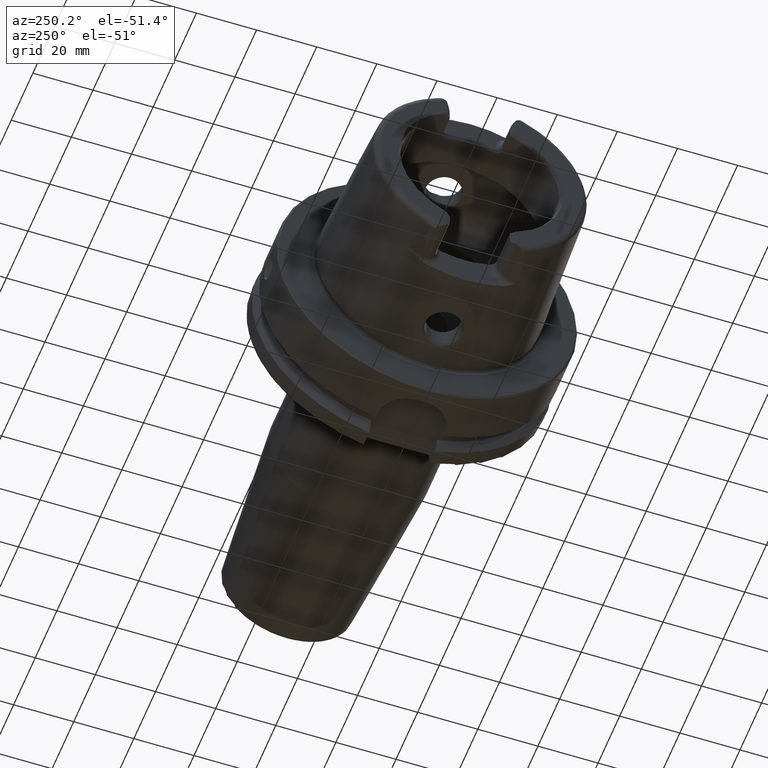
[diagram: clean part render]
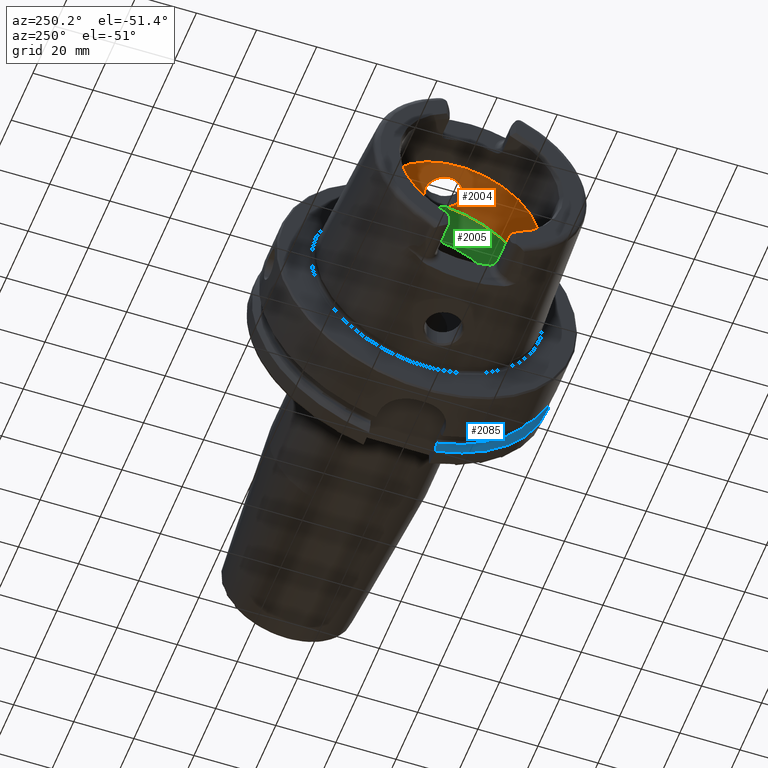
[diagram: same view with three faces highlighted in distinct colors, each labeled with its STEP entity id]
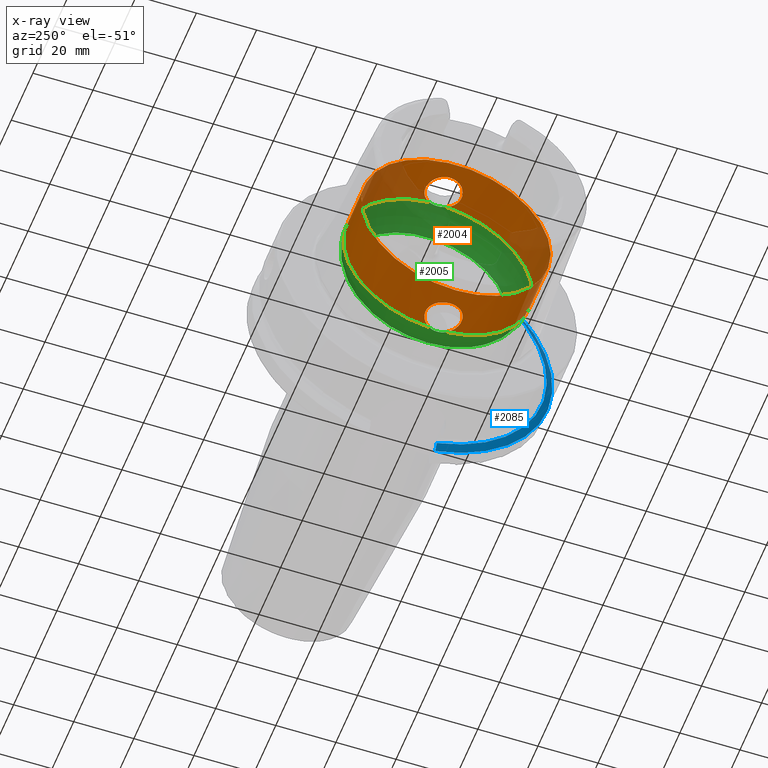
[diagram: x-ray of the same camera — body ghosted, the three highlighted faces saturated]
A machine part, auxiliary view with three faces highlighted in distinct colors.
The next image is the same camera in x-ray (body ghosted, the three faces saturated) — at least one of them is partly hidden behind the body in this view.
Their STEP definitions:

[orange] entity #2004 — the highlighted cylindrical surface (bore or boss wall) has radius 31.5 mm, axis along (-1, 0, 0).
#49=B_SPLINE_CURVE_WITH_KNOTS('',3,(#3570,#3571,#3572,#3573,#3574,#3575,
#3576,#3577,#3578,#3579,#3580,#3581,#3582,#3583,#3584,#3585,#3586,#3587,
#3588,#3589,#3590,#3591,#3592,#3593,#3594,#3595,#3596,#3597,#3598,#3599,
#3600),.UNSPECIFIED.,.F.,.F.,(4,2,2,2,2,2,2,2,2,2,2,3,2,2,4),(-2.42966289251045,
-2.26609494287567,-2.03948128472637,-1.81286762657707,-1.58625396842777,
-1.35964031027847,-1.1330370617835,-0.906433813288535,-0.679830564793567,
-0.453227316298599,-0.226613658149299,0.,0.2266136581493,0.453227316298599,
0.616795265988555),.UNSPECIFIED.);
#54=B_SPLINE_CURVE_WITH_KNOTS('',3,(#3762,#3763,#3764,#3765,#3766,#3767,
#3768,#3769,#3770,#3771,#3772,#3773,#3774,#3775,#3776,#3777,#3778,#3779,
#3780,#3781,#3782,#3783,#3784,#3785,#3786,#3787,#3788,#3789,#3790,#3791,
#3792),.UNSPECIFIED.,.F.,.F.,(4,2,2,3,2,2,2,2,2,2,2,2,2,2,4),(-0.616795265933374,
-0.453227316298598,-0.226613658149299,0.,0.2266136581493,0.453227316298599,
0.679830564793567,0.906433813288535,1.1330370617835,1.35964031027847,1.58625396842777,
1.81286762657707,2.03948128472637,2.26609494287567,2.42966289256562),
 .UNSPECIFIED.);
#183=CYLINDRICAL_SURFACE('',#2195,31.5);
#242=FACE_OUTER_BOUND('',#369,.T.);
#369=EDGE_LOOP('',(#1504,#1505,#1506,#1507,#1508,#1509,#1510,#1511,#1512));
#501=LINE('',#3808,#608);
#608=VECTOR('',#2583,31.5);
#714=CIRCLE('',#2196,31.5);
#715=CIRCLE('',#2197,31.5);
#716=CIRCLE('',#2198,31.5);
#717=CIRCLE('',#2199,31.5);
#718=CIRCLE('',#2200,31.5);
#888=VERTEX_POINT('',#3558);
#889=VERTEX_POINT('',#3569);
#892=VERTEX_POINT('',#3749);
#894=VERTEX_POINT('',#3761);
#895=VERTEX_POINT('',#3805);
#896=VERTEX_POINT('',#3807);
#897=VERTEX_POINT('',#3809);
#1119=EDGE_CURVE('',#889,#888,#49,.T.);
#1125=EDGE_CURVE('',#894,#892,#54,.T.);
#1128=EDGE_CURVE('',#895,#892,#714,.T.);
#1129=EDGE_CURVE('',#895,#896,#501,.T.);
#1130=EDGE_CURVE('',#896,#897,#715,.T.);
#1131=EDGE_CURVE('',#897,#896,#716,.T.);
#1132=EDGE_CURVE('',#889,#895,#717,.T.);
#1133=EDGE_CURVE('',#894,#888,#718,.T.);
#1504=ORIENTED_EDGE('',*,*,#1125,.T.);
#1505=ORIENTED_EDGE('',*,*,#1128,.F.);
#1506=ORIENTED_EDGE('',*,*,#1129,.T.);
#1507=ORIENTED_EDGE('',*,*,#1130,.T.);
#1508=ORIENTED_EDGE('',*,*,#1131,.T.);
#1509=ORIENTED_EDGE('',*,*,#1129,.F.);
#1510=ORIENTED_EDGE('',*,*,#1132,.F.);
#1511=ORIENTED_EDGE('',*,*,#1119,.T.);
#1512=ORIENTED_EDGE('',*,*,#1133,.F.);
#2004=ADVANCED_FACE('',(#242),#183,.F.);
#2195=AXIS2_PLACEMENT_3D('',#3804,#2579,#2580);
#2196=AXIS2_PLACEMENT_3D('',#3806,#2581,#2582);
#2197=AXIS2_PLACEMENT_3D('',#3810,#2584,#2585);
#2198=AXIS2_PLACEMENT_3D('',#3811,#2586,#2587);
#2199=AXIS2_PLACEMENT_3D('',#3812,#2588,#2589);
#2200=AXIS2_PLACEMENT_3D('',#3813,#2590,#2591);
#2579=DIRECTION('center_axis',(-1.,0.,0.));
#2580=DIRECTION('ref_axis',(0.,1.,0.));
#2581=DIRECTION('center_axis',(-1.,0.,0.));
#2582=DIRECTION('ref_axis',(0.,0.,1.));
#2583=DIRECTION('',(-1.,0.,0.));
#2584=DIRECTION('center_axis',(-1.,0.,0.));
#2585=DIRECTION('ref_axis',(0.,0.,1.));
#2586=DIRECTION('center_axis',(-1.,0.,0.));
#2587=DIRECTION('ref_axis',(0.,0.,1.));
#2588=DIRECTION('center_axis',(-1.,0.,0.));
#2589=DIRECTION('ref_axis',(0.,0.,1.));
#2590=DIRECTION('center_axis',(-1.,0.,0.));
#2591=DIRECTION('ref_axis',(0.,0.,1.));
#3558=CARTESIAN_POINT('',(-9.74679434480896,2.89893607109041,-31.3663222207471));
#3569=CARTESIAN_POINT('',(-9.74679434480896,-2.89893607109041,-31.3663222207471));
#3570=CARTESIAN_POINT('Ctrl Pts',(-9.74679434480898,-2.8989360710904,-31.3663222207471));
#3571=CARTESIAN_POINT('Ctrl Pts',(-10.0245557799842,-3.40227174537722,-31.3198029657389));
#3572=CARTESIAN_POINT('Ctrl Pts',(-10.3735944692601,-3.85887584349869,-31.2651415110221));
#3573=CARTESIAN_POINT('Ctrl Pts',(-11.289042660848,-4.77432403508655,-31.140708727458));
#3574=CARTESIAN_POINT('Ctrl Pts',(-11.9624834305428,-5.23577180141274,-31.0633803744766));
#3575=CARTESIAN_POINT('Ctrl Pts',(-13.4401908644727,-5.84865855662958,-30.9538382316308));
#3576=CARTESIAN_POINT('Ctrl Pts',(-14.2446211395023,-6.00000000000001,-30.9232921921325));
#3577=CARTESIAN_POINT('Ctrl Pts',(-15.7553788604977,-6.00000000000001,-30.9232921921325));
#3578=CARTESIAN_POINT('Ctrl Pts',(-16.5598091355273,-5.84865855662958,-30.9538382316308));
#3579=CARTESIAN_POINT('Ctrl Pts',(-18.0375165694572,-5.23577180141275,-31.0633803744766));
#3580=CARTESIAN_POINT('Ctrl Pts',(-18.710957339152,-4.77432403508655,-31.140708727458));
#3581=CARTESIAN_POINT('Ctrl Pts',(-19.7742996118461,-3.71098176239249,-31.2852440928545));
#3582=CARTESIAN_POINT('Ctrl Pts',(-20.2357665181958,-3.03753058698362,-31.3619556484746));
#3583=CARTESIAN_POINT('Ctrl Pts',(-20.8486671603361,-1.55978711209124,-31.4700797313679));
#3584=CARTESIAN_POINT('Ctrl Pts',(-21.,-0.755344161649895,-31.5));
#3585=CARTESIAN_POINT('Ctrl Pts',(-21.,0.755344161649892,-31.5));
#3586=CARTESIAN_POINT('Ctrl Pts',(-20.8486671603361,1.55978711209124,-31.4700797313679));
#3587=CARTESIAN_POINT('Ctrl Pts',(-20.2357665181958,3.03753058698362,-31.3619556484746));
#3588=CARTESIAN_POINT('Ctrl Pts',(-19.7742996118461,3.71098176239249,-31.2852440928545));
#3589=CARTESIAN_POINT('Ctrl Pts',(-18.710957339152,4.77432403508655,-31.140708727458));
#3590=CARTESIAN_POINT('Ctrl Pts',(-18.0375165694572,5.23577180141274,-31.0633803744766));
#3591=CARTESIAN_POINT('Ctrl Pts',(-16.5598091355273,5.84865855662958,-30.9538382316308));
#3592=CARTESIAN_POINT('Ctrl Pts',(-15.7553788604977,6.00000000000001,-30.9232921921325));
#3593=CARTESIAN_POINT('Ctrl Pts',(-15.,6.00000000000001,-30.9232921921325));
#3594=CARTESIAN_POINT('Ctrl Pts',(-14.2446211395023,6.00000000000001,-30.9232921921325));
#3595=CARTESIAN_POINT('Ctrl Pts',(-13.4401908644727,5.84865855662958,-30.9538382316308));
#3596=CARTESIAN_POINT('Ctrl Pts',(-11.9624834305428,5.23577180141274,-31.0633803744766));
#3597=CARTESIAN_POINT('Ctrl Pts',(-11.289042660848,4.77432403508655,-31.140708727458));
#3598=CARTESIAN_POINT('Ctrl Pts',(-10.3735944691306,3.85887584336922,-31.2651415110397));
#3599=CARTESIAN_POINT('Ctrl Pts',(-10.0245557801354,3.40227174565105,-31.3198029657135));
#3600=CARTESIAN_POINT('Ctrl Pts',(-9.74679434480898,2.8989360710904,-31.3663222207471));
#3749=CARTESIAN_POINT('',(-9.74679434480896,-2.89893607109042,31.3663222207471));
#3761=CARTESIAN_POINT('',(-9.74679434480896,2.89893607109042,31.3663222207471));
#3762=CARTESIAN_POINT('Ctrl Pts',(-9.74679434480897,2.89893607109041,31.3663222207471));
#3763=CARTESIAN_POINT('Ctrl Pts',(-10.0245557799842,3.40227174537723,31.3198029657389));
#3764=CARTESIAN_POINT('Ctrl Pts',(-10.3735944692601,3.85887584349869,31.2651415110221));
#3765=CARTESIAN_POINT('Ctrl Pts',(-11.289042660848,4.77432403508655,31.140708727458));
#3766=CARTESIAN_POINT('Ctrl Pts',(-11.9624834305428,5.23577180141274,31.0633803744766));
#3767=CARTESIAN_POINT('Ctrl Pts',(-13.4401908644727,5.84865855662958,30.9538382316308));
#3768=CARTESIAN_POINT('Ctrl Pts',(-14.2446211395023,6.00000000000001,30.9232921921325));
#3769=CARTESIAN_POINT('Ctrl Pts',(-15.,6.00000000000001,30.9232921921325));
#3770=CARTESIAN_POINT('Ctrl Pts',(-15.7553788604977,6.00000000000001,30.9232921921325));
#3771=CARTESIAN_POINT('Ctrl Pts',(-16.5598091355273,5.84865855662958,30.9538382316308));
#3772=CARTESIAN_POINT('Ctrl Pts',(-18.0375165694572,5.23577180141274,31.0633803744766));
#3773=CARTESIAN_POINT('Ctrl Pts',(-18.710957339152,4.77432403508655,31.140708727458));
#3774=CARTESIAN_POINT('Ctrl Pts',(-19.7742996118461,3.71098176239249,31.2852440928545));
#3775=CARTESIAN_POINT('Ctrl Pts',(-20.2357665181958,3.03753058698362,31.3619556484746));
#3776=CARTESIAN_POINT('Ctrl Pts',(-20.8486671603361,1.55978711209124,31.4700797313679));
#3777=CARTESIAN_POINT('Ctrl Pts',(-21.,0.755344161649892,31.5));
#3778=CARTESIAN_POINT('Ctrl Pts',(-21.,-0.755344161649894,31.5));
#3779=CARTESIAN_POINT('Ctrl Pts',(-20.8486671603361,-1.55978711209124,31.4700797313679));
#3780=CARTESIAN_POINT('Ctrl Pts',(-20.2357665181958,-3.03753058698362,31.3619556484746));
#3781=CARTESIAN_POINT('Ctrl Pts',(-19.7742996118461,-3.71098176239249,31.2852440928545));
#3782=CARTESIAN_POINT('Ctrl Pts',(-18.710957339152,-4.77432403508655,31.140708727458));
#3783=CARTESIAN_POINT('Ctrl Pts',(-18.0375165694572,-5.23577180141274,31.0633803744766));
#3784=CARTESIAN_POINT('Ctrl Pts',(-16.5598091355273,-5.84865855662958,30.9538382316308));
#3785=CARTESIAN_POINT('Ctrl Pts',(-15.7553788604977,-6.00000000000001,30.9232921921325));
#3786=CARTESIAN_POINT('Ctrl Pts',(-14.2446211395023,-6.00000000000001,30.9232921921325));
#3787=CARTESIAN_POINT('Ctrl Pts',(-13.4401908644727,-5.84865855662958,30.9538382316308));
#3788=CARTESIAN_POINT('Ctrl Pts',(-11.9624834305428,-5.23577180141274,31.0633803744766));
#3789=CARTESIAN_POINT('Ctrl Pts',(-11.289042660848,-4.77432403508655,31.140708727458));
#3790=CARTESIAN_POINT('Ctrl Pts',(-10.3735944691306,-3.85887584336922,31.2651415110397));
#3791=CARTESIAN_POINT('Ctrl Pts',(-10.0245557801353,-3.40227174565106,31.3198029657135));
#3792=CARTESIAN_POINT('Ctrl Pts',(-9.74679434480897,-2.89893607109041,31.3663222207471));
#3804=CARTESIAN_POINT('Origin',(-18.1430342013226,0.,0.));
#3805=CARTESIAN_POINT('',(-9.74679434480896,-31.5,3.85763741731416E-15));
#3806=CARTESIAN_POINT('Origin',(-9.74679434480896,0.,0.));
#3807=CARTESIAN_POINT('',(-26.5392740578363,-31.5,3.85763741731416E-15));
#3808=CARTESIAN_POINT('',(-18.1430342013226,-31.5,3.85763741731416E-15));
#3809=CARTESIAN_POINT('',(-26.5392740578363,-3.85763741731416E-15,-31.5));
#3810=CARTESIAN_POINT('Origin',(-26.5392740578363,0.,0.));
#3811=CARTESIAN_POINT('Origin',(-26.5392740578363,0.,0.));
#3812=CARTESIAN_POINT('Origin',(-9.74679434480896,0.,0.));
#3813=CARTESIAN_POINT('Origin',(-9.74679434480896,0.,0.));

[blue] entity #2085 — the highlighted conical surface has half-angle 60 deg.
#20=(
BOUNDED_CURVE()
B_SPLINE_CURVE(2,(#3975,#3976,#3977),.UNSPECIFIED.,.F.,.F.)
B_SPLINE_CURVE_WITH_KNOTS((3,3),(0.,0.343884390880419),.UNSPECIFIED.)
CURVE()
GEOMETRIC_REPRESENTATION_ITEM()
RATIONAL_B_SPLINE_CURVE((1.,1.00052016257005,1.))
REPRESENTATION_ITEM('')
);
#25=(
BOUNDED_CURVE()
B_SPLINE_CURVE(2,(#4190,#4191,#4192),.UNSPECIFIED.,.F.,.F.)
B_SPLINE_CURVE_WITH_KNOTS((3,3),(0.,0.28292349080556),.UNSPECIFIED.)
CURVE()
GEOMETRIC_REPRESENTATION_ITEM()
RATIONAL_B_SPLINE_CURVE((1.,1.0003193410929,1.))
REPRESENTATION_ITEM('')
);
#323=FACE_OUTER_BOUND('',#455,.T.);
#455=EDGE_LOOP('',(#1934,#1935,#1936,#1937));
#746=CIRCLE('',#2255,50.);
#798=CIRCLE('',#2360,47.5975952641917);
#923=VERTEX_POINT('',#3972);
#924=VERTEX_POINT('',#3974);
#958=VERTEX_POINT('',#4187);
#959=VERTEX_POINT('',#4189);
#1165=EDGE_CURVE('',#924,#923,#20,.T.);
#1215=EDGE_CURVE('',#959,#958,#25,.T.);
#1231=EDGE_CURVE('',#924,#958,#746,.T.);
#1316=EDGE_CURVE('',#923,#959,#798,.T.);
#1934=ORIENTED_EDGE('',*,*,#1165,.T.);
#1935=ORIENTED_EDGE('',*,*,#1316,.T.);
#1936=ORIENTED_EDGE('',*,*,#1215,.T.);
#1937=ORIENTED_EDGE('',*,*,#1231,.F.);
#1968=CONICAL_SURFACE('',#2361,48.7987976320958,1.0471975511966);
#2085=ADVANCED_FACE('',(#323),#1968,.T.);
#2255=AXIS2_PLACEMENT_3D('',#4252,#2738,#2739);
#2360=AXIS2_PLACEMENT_3D('',#4496,#2972,#2973);
#2361=AXIS2_PLACEMENT_3D('',#4497,#2974,#2975);
#2738=DIRECTION('center_axis',(1.,0.,0.));
#2739=DIRECTION('ref_axis',(0.,0.,-1.));
#2972=DIRECTION('center_axis',(1.,0.,0.));
#2973=DIRECTION('ref_axis',(0.,0.,-1.));
#2974=DIRECTION('center_axis',(1.,0.,0.));
#2975=DIRECTION('ref_axis',(0.,-0.951449961441176,-0.307803461438603));
#3972=CARTESIAN_POINT('',(21.875,-35.6830642593065,31.5));
#3974=CARTESIAN_POINT('',(23.2620290209214,-38.8297566307078,31.5));
#3975=CARTESIAN_POINT('Ctrl Pts',(23.2620290209214,-38.8297566307078,31.5));
#3976=CARTESIAN_POINT('Ctrl Pts',(22.5392272442767,-37.2176818849707,31.5));
#3977=CARTESIAN_POINT('Ctrl Pts',(21.875,-35.6830642593065,31.5));
#4187=CARTESIAN_POINT('',(23.2620290209214,-11.,-48.7749935930288));
#4189=CARTESIAN_POINT('',(21.875,-11.,-46.3090819919138));
#4190=CARTESIAN_POINT('Ctrl Pts',(21.875,-11.,-46.3090819919138));
#4191=CARTESIAN_POINT('Ctrl Pts',(22.5505288964237,-11.,-47.5116880808802));
#4192=CARTESIAN_POINT('Ctrl Pts',(23.2620290209214,-11.,-48.7749935930288));
#4252=CARTESIAN_POINT('Origin',(23.2620290209214,0.,0.));
#4496=CARTESIAN_POINT('Origin',(21.875,0.,0.));
#4497=CARTESIAN_POINT('Origin',(22.5685145104607,0.,0.));

[green] entity #2005 — the highlighted toroidal blend (fillet) surface has major radius 19.5 mm and minor (blend) radius 12 mm.
#48=B_SPLINE_CURVE_WITH_KNOTS('',3,(#3559,#3560,#3561,#3562,#3563,#3564,
#3565,#3566,#3567,#3568),.UNSPECIFIED.,.F.,.F.,(4,2,2,2,4),(-0.606113644645353,
-0.532141714710631,-0.407956541554012,-0.344441109025195,-0.303157612487306),
 .UNSPECIFIED.);
#50=B_SPLINE_CURVE_WITH_KNOTS('',3,(#3601,#3602,#3603,#3604,#3605,#3606,
#3607,#3608,#3609,#3610),.UNSPECIFIED.,.F.,.F.,(4,2,2,2,4),(-0.303157612487306,
-0.297161587155601,-0.247817233363509,-0.174446982686599,0.),
 .UNSPECIFIED.);
#53=B_SPLINE_CURVE_WITH_KNOTS('',3,(#3751,#3752,#3753,#3754,#3755,#3756,
#3757,#3758,#3759,#3760),.UNSPECIFIED.,.F.,.F.,(4,2,2,2,4),(-0.606113644645388,
-0.532141714710621,-0.407956541553997,-0.344441109025146,-0.303157612487227),
 .UNSPECIFIED.);
#55=B_SPLINE_CURVE_WITH_KNOTS('',3,(#3793,#3794,#3795,#3796,#3797,#3798,
#3799,#3800,#3801,#3802),.UNSPECIFIED.,.F.,.F.,(4,2,2,2,4),(-0.303157612487227,
-0.297161587155532,-0.247817233363497,-0.174446982686607,0.),
 .UNSPECIFIED.);
#138=TOROIDAL_SURFACE('',#2201,19.5,12.);
#243=FACE_OUTER_BOUND('',#370,.T.);
#370=EDGE_LOOP('',(#1513,#1514,#1515,#1516,#1517,#1518,#1519,#1520,#1521,
#1522,#1523));
#714=CIRCLE('',#2196,31.5);
#717=CIRCLE('',#2199,31.5);
#718=CIRCLE('',#2200,31.5);
#719=CIRCLE('',#2202,26.5);
#720=CIRCLE('',#2203,26.5);
#721=CIRCLE('',#2204,12.);
#887=VERTEX_POINT('',#3556);
#888=VERTEX_POINT('',#3558);
#889=VERTEX_POINT('',#3569);
#892=VERTEX_POINT('',#3749);
#893=VERTEX_POINT('',#3750);
#894=VERTEX_POINT('',#3761);
#895=VERTEX_POINT('',#3805);
#898=VERTEX_POINT('',#3815);
#899=VERTEX_POINT('',#3816);
#1118=EDGE_CURVE('',#888,#887,#48,.T.);
#1120=EDGE_CURVE('',#887,#889,#50,.T.);
#1124=EDGE_CURVE('',#892,#893,#53,.T.);
#1126=EDGE_CURVE('',#893,#894,#55,.T.);
#1128=EDGE_CURVE('',#895,#892,#714,.T.);
#1132=EDGE_CURVE('',#889,#895,#717,.T.);
#1133=EDGE_CURVE('',#894,#888,#718,.T.);
#1134=EDGE_CURVE('',#898,#899,#719,.T.);
#1135=EDGE_CURVE('',#899,#898,#720,.T.);
#1136=EDGE_CURVE('',#899,#887,#721,.T.);
#1513=ORIENTED_EDGE('',*,*,#1134,.F.);
#1514=ORIENTED_EDGE('',*,*,#1135,.F.);
#1515=ORIENTED_EDGE('',*,*,#1136,.T.);
#1516=ORIENTED_EDGE('',*,*,#1120,.T.);
#1517=ORIENTED_EDGE('',*,*,#1132,.T.);
#1518=ORIENTED_EDGE('',*,*,#1128,.T.);
#1519=ORIENTED_EDGE('',*,*,#1124,.T.);
#1520=ORIENTED_EDGE('',*,*,#1126,.T.);
#1521=ORIENTED_EDGE('',*,*,#1133,.T.);
#1522=ORIENTED_EDGE('',*,*,#1118,.T.);
#1523=ORIENTED_EDGE('',*,*,#1136,.F.);
#2005=ADVANCED_FACE('',(#243),#138,.F.);
#2196=AXIS2_PLACEMENT_3D('',#3806,#2581,#2582);
#2199=AXIS2_PLACEMENT_3D('',#3812,#2588,#2589);
#2200=AXIS2_PLACEMENT_3D('',#3813,#2590,#2591);
#2201=AXIS2_PLACEMENT_3D('',#3814,#2592,#2593);
#2202=AXIS2_PLACEMENT_3D('',#3817,#2594,#2595);
#2203=AXIS2_PLACEMENT_3D('',#3818,#2596,#2597);
#2204=AXIS2_PLACEMENT_3D('',#3819,#2598,#2599);
#2581=DIRECTION('center_axis',(-1.,0.,0.));
#2582=DIRECTION('ref_axis',(0.,0.,1.));
#2588=DIRECTION('center_axis',(-1.,0.,0.));
#2589=DIRECTION('ref_axis',(0.,0.,1.));
#2590=DIRECTION('center_axis',(-1.,0.,0.));
#2591=DIRECTION('ref_axis',(0.,0.,1.));
#2592=DIRECTION('center_axis',(-1.,0.,0.));
#2593=DIRECTION('ref_axis',(0.,0.,1.));
#2594=DIRECTION('center_axis',(-1.,0.,0.));
#2595=DIRECTION('ref_axis',(0.,0.,1.));
#2596=DIRECTION('center_axis',(-1.,0.,0.));
#2597=DIRECTION('ref_axis',(0.,0.,1.));
#2598=DIRECTION('center_axis',(0.,1.,-1.22464679914735E-16));
#2599=DIRECTION('ref_axis',(0.,-1.22464679914735E-16,-1.));
#3556=CARTESIAN_POINT('',(-9.,8.53116613017712E-16,-31.4767398822284));
#3558=CARTESIAN_POINT('',(-9.74679434480896,2.89893607109041,-31.3663222207471));
#3559=CARTESIAN_POINT('Ctrl Pts',(-9.74679434480898,2.89893607109041,-31.3663222207471));
#3560=CARTESIAN_POINT('Ctrl Pts',(-9.62803941549252,2.68373847757038,-31.3862111979079));
#3561=CARTESIAN_POINT('Ctrl Pts',(-9.52250794022164,2.46123932380009,-31.4027818190648));
#3562=CARTESIAN_POINT('Ctrl Pts',(-9.27707880675082,1.84905941644996,-31.4398086116956));
#3563=CARTESIAN_POINT('Ctrl Pts',(-9.16318715371328,1.45014848778478,-31.4552463037839));
#3564=CARTESIAN_POINT('Ctrl Pts',(-9.05448554629564,0.83406948853474,-31.4697090180031));
#3565=CARTESIAN_POINT('Ctrl Pts',(-9.02875508102837,0.623753972628784,-31.4730355369691));
#3566=CARTESIAN_POINT('Ctrl Pts',(-9.00473516300901,0.275210595137741,-31.4761342948647));
#3567=CARTESIAN_POINT('Ctrl Pts',(-9.,0.13762179988616,-31.4767398822284));
#3568=CARTESIAN_POINT('Ctrl Pts',(-9.,9.71445146547012E-16,-31.4767398822284));
#3569=CARTESIAN_POINT('',(-9.74679434480896,-2.89893607109041,-31.3663222207471));
#3601=CARTESIAN_POINT('Ctrl Pts',(-9.,9.83483832277069E-16,-31.4767398822284));
#3602=CARTESIAN_POINT('Ctrl Pts',(-9.,-0.0199882245331354,-31.4767398822284));
#3603=CARTESIAN_POINT('Ctrl Pts',(-9.00009988237686,-0.0399771452902417,
-31.4767270717783));
#3604=CARTESIAN_POINT('Ctrl Pts',(-9.00194380057016,-0.224464346212316,
-31.4764905359115));
#3605=CARTESIAN_POINT('Ctrl Pts',(-9.01035297969853,-0.388827878343727,
-31.4754151841588));
#3606=CARTESIAN_POINT('Ctrl Pts',(-9.0480310904853,-0.796171644009328,-31.4705320701686));
#3607=CARTESIAN_POINT('Ctrl Pts',(-9.08543037238412,-1.03809779370842,-31.4656619259797));
#3608=CARTESIAN_POINT('Ctrl Pts',(-9.26119500081336,-1.84501079512327,-31.441850680052));
#3609=CARTESIAN_POINT('Ctrl Pts',(-9.4667592962906,-2.39148034786879,-31.4132222586341));
#3610=CARTESIAN_POINT('Ctrl Pts',(-9.74679434480898,-2.89893607109041,-31.3663222207471));
#3749=CARTESIAN_POINT('',(-9.74679434480896,-2.89893607109042,31.3663222207471));
#3750=CARTESIAN_POINT('',(-8.99999999999999,7.8372767397864E-16,31.4767398822284));
#3751=CARTESIAN_POINT('Ctrl Pts',(-9.74679434480898,-2.89893607109042,31.3663222207471));
#3752=CARTESIAN_POINT('Ctrl Pts',(-9.62803941549257,-2.6837384775705,31.3862111979079));
#3753=CARTESIAN_POINT('Ctrl Pts',(-9.52250794022172,-2.46123932380032,31.4027818190648));
#3754=CARTESIAN_POINT('Ctrl Pts',(-9.27707880675083,-1.84905941645004,31.4398086116956));
#3755=CARTESIAN_POINT('Ctrl Pts',(-9.16318715371328,-1.45014848778485,31.4552463037839));
#3756=CARTESIAN_POINT('Ctrl Pts',(-9.05448554629561,-0.834069488534672,
31.4697090180031));
#3757=CARTESIAN_POINT('Ctrl Pts',(-9.02875508102836,-0.623753972628598,
31.4730355369691));
#3758=CARTESIAN_POINT('Ctrl Pts',(-9.00473516300902,-0.275210595137865,
31.4761342948647));
#3759=CARTESIAN_POINT('Ctrl Pts',(-8.99999999999999,-0.137621799886392,
31.4767398822284));
#3760=CARTESIAN_POINT('Ctrl Pts',(-8.99999999999999,9.0205620750794E-16,
31.4767398822284));
#3761=CARTESIAN_POINT('',(-9.74679434480896,2.89893607109042,31.3663222207471));
#3793=CARTESIAN_POINT('Ctrl Pts',(-8.99999999999999,8.7920239009422E-16,
31.4767398822284));
#3794=CARTESIAN_POINT('Ctrl Pts',(-8.99999999999999,0.0199882245331231,
31.4767398822284));
#3795=CARTESIAN_POINT('Ctrl Pts',(-9.00009988237684,0.0399771452902225,
31.4767270717783));
#3796=CARTESIAN_POINT('Ctrl Pts',(-9.00194380057014,0.224464346212396,31.4764905359115));
#3797=CARTESIAN_POINT('Ctrl Pts',(-9.01035297969852,0.388827878343765,31.4754151841588));
#3798=CARTESIAN_POINT('Ctrl Pts',(-9.0480310904853,0.79617164400948,31.4705320701686));
#3799=CARTESIAN_POINT('Ctrl Pts',(-9.08543037238414,1.03809779370849,31.4656619259797));
#3800=CARTESIAN_POINT('Ctrl Pts',(-9.26119500081334,1.84501079512323,31.441850680052));
#3801=CARTESIAN_POINT('Ctrl Pts',(-9.46675929629059,2.39148034786878,31.4132222586341));
#3802=CARTESIAN_POINT('Ctrl Pts',(-9.74679434480898,2.89893607109043,31.3663222207471));
#3805=CARTESIAN_POINT('',(-9.74679434480896,-31.5,3.85763741731416E-15));
#3806=CARTESIAN_POINT('Origin',(-9.74679434480896,0.,0.));
#3812=CARTESIAN_POINT('Origin',(-9.74679434480896,0.,0.));
#3813=CARTESIAN_POINT('Origin',(-9.74679434480896,0.,0.));
#3814=CARTESIAN_POINT('Origin',(-9.74679434480896,0.,0.));
#3815=CARTESIAN_POINT('',(0.,-26.5,3.24531401774049E-15));
#3816=CARTESIAN_POINT('',(0.,-3.24531401774049E-15,-26.5));
#3817=CARTESIAN_POINT('Origin',(0.,0.,0.));
#3818=CARTESIAN_POINT('Origin',(0.,0.,0.));
#3819=CARTESIAN_POINT('Origin',(-9.74679434480896,-2.38806125833734E-15,
-19.5));